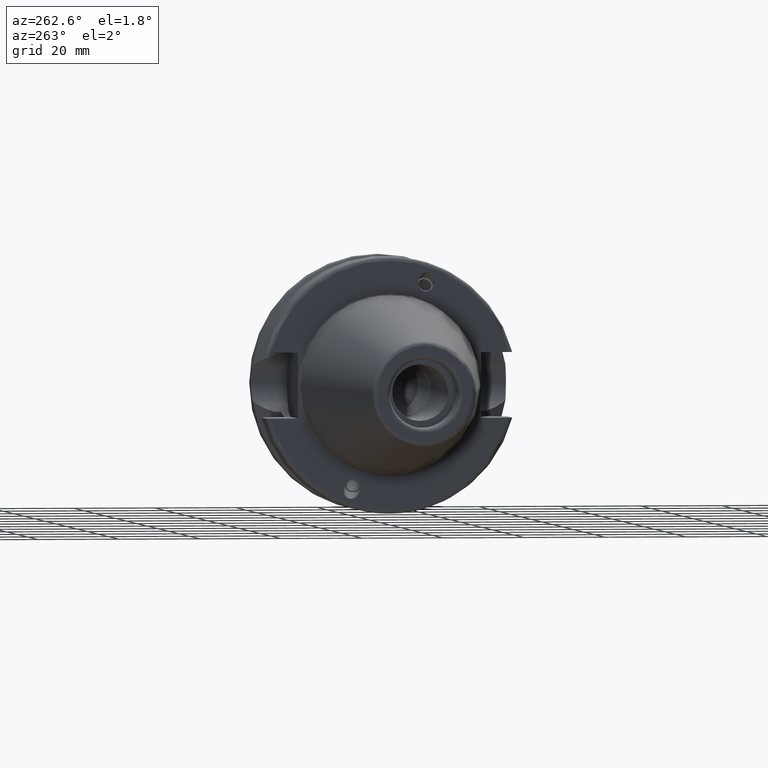
[diagram: clean part render]
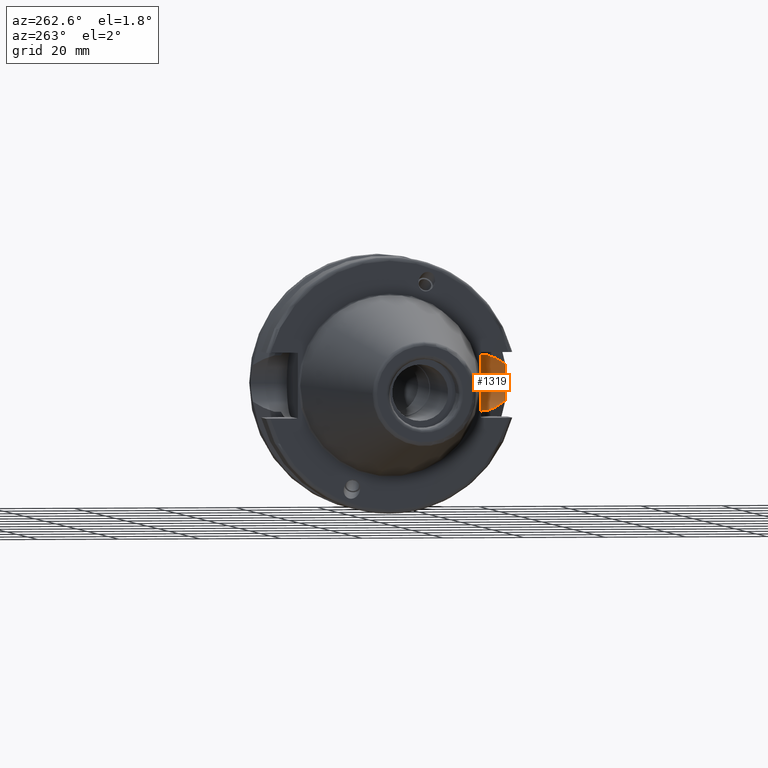
[diagram: same view with one face highlighted and labeled with its STEP entity id]
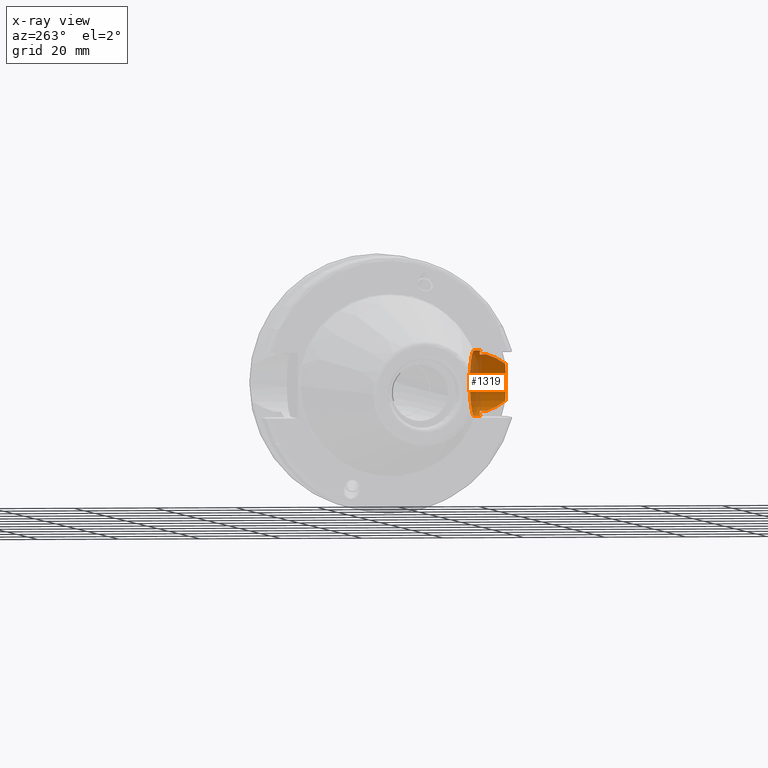
[diagram: x-ray of the same camera — body ghosted, the highlighted face saturated]
A machine part, auxiliary view. The second image highlights one B-rep face of the part: STEP entity #1319.
The next image is the same camera in x-ray: the body ghosted, the highlighted face saturated — about 30% of this face is hidden behind the body in this view.
In plain terms, the highlighted cylindrical surface (edge-blend (fillet) strip) has radius 8.05 mm, axis along (0, 1, 0).
Its self-contained STEP definition (entity closure, byte-faithful):
#45=B_SPLINE_CURVE_WITH_KNOTS('',3,(#2347,#2348,#2349,#2350,#2351,#2352),
 .UNSPECIFIED.,.F.,.F.,(4,2,4),(2.02525951614585,2.13846497015446,2.44402436414645),
 .UNSPECIFIED.);
#46=B_SPLINE_CURVE_WITH_KNOTS('',3,(#2356,#2357,#2358,#2359,#2360,#2361),
 .UNSPECIFIED.,.F.,.F.,(4,2,4),(3.12975744792547,3.62699288756974,3.70848737461386),
 .UNSPECIFIED.);
#47=B_SPLINE_CURVE_WITH_KNOTS('',3,(#2363,#2364,#2365,#2366,#2367,#2368),
 .UNSPECIFIED.,.F.,.F.,(4,2,4),(1.21877751840372,1.52344857393281,1.67526011710938),
 .UNSPECIFIED.);
#48=B_SPLINE_CURVE_WITH_KNOTS('',3,(#2370,#2371,#2372,#2373,#2374,#2375),
 .UNSPECIFIED.,.F.,.F.,(4,2,4),(0.762294919698051,0.914106462874623,1.21877751840372),
 .UNSPECIFIED.);
#49=B_SPLINE_CURVE_WITH_KNOTS('',3,(#2377,#2378,#2379,#2380,#2381,#2382),
 .UNSPECIFIED.,.F.,.F.,(4,2,4),(1.46421027899559,1.54570476603972,2.04294020568399),
 .UNSPECIFIED.);
#50=B_SPLINE_CURVE_WITH_KNOTS('',3,(#2386,#2387,#2388,#2389,#2390,#2391),
 .UNSPECIFIED.,.F.,.F.,(4,2,4),(0.,0.305559393991992,0.418764848000603),
 .UNSPECIFIED.);
#78=CYLINDRICAL_SURFACE('',#1477,8.05);
#149=LINE('',#2354,#209);
#150=LINE('',#2384,#210);
#151=LINE('',#2393,#211);
#152=LINE('',#2396,#212);
#209=VECTOR('',#1794,10.);
#210=VECTOR('',#1795,10.);
#211=VECTOR('',#1796,10.);
#212=VECTOR('',#1799,10.);
#291=FACE_OUTER_BOUND('',#370,.T.);
#370=EDGE_LOOP('',(#1057,#1058,#1059,#1060,#1061,#1062,#1063,#1064,#1065,
#1066,#1067));
#464=CIRCLE('',#1478,8.05);
#587=VERTEX_POINT('',#2345);
#588=VERTEX_POINT('',#2346);
#589=VERTEX_POINT('',#2353);
#590=VERTEX_POINT('',#2355);
#591=VERTEX_POINT('',#2362);
#592=VERTEX_POINT('',#2369);
#593=VERTEX_POINT('',#2376);
#594=VERTEX_POINT('',#2383);
#595=VERTEX_POINT('',#2385);
#596=VERTEX_POINT('',#2392);
#597=VERTEX_POINT('',#2394);
#760=EDGE_CURVE('',#587,#588,#45,.T.);
#761=EDGE_CURVE('',#589,#587,#149,.T.);
#762=EDGE_CURVE('',#590,#589,#46,.T.);
#763=EDGE_CURVE('',#591,#590,#47,.T.);
#764=EDGE_CURVE('',#592,#591,#48,.T.);
#765=EDGE_CURVE('',#593,#592,#49,.T.);
#766=EDGE_CURVE('',#594,#593,#150,.T.);
#767=EDGE_CURVE('',#595,#594,#50,.T.);
#768=EDGE_CURVE('',#596,#595,#151,.T.);
#769=EDGE_CURVE('',#596,#597,#464,.T.);
#770=EDGE_CURVE('',#597,#588,#152,.T.);
#1057=ORIENTED_EDGE('',*,*,#760,.F.);
#1058=ORIENTED_EDGE('',*,*,#761,.F.);
#1059=ORIENTED_EDGE('',*,*,#762,.F.);
#1060=ORIENTED_EDGE('',*,*,#763,.F.);
#1061=ORIENTED_EDGE('',*,*,#764,.F.);
#1062=ORIENTED_EDGE('',*,*,#765,.F.);
#1063=ORIENTED_EDGE('',*,*,#766,.F.);
#1064=ORIENTED_EDGE('',*,*,#767,.F.);
#1065=ORIENTED_EDGE('',*,*,#768,.F.);
#1066=ORIENTED_EDGE('',*,*,#769,.T.);
#1067=ORIENTED_EDGE('',*,*,#770,.T.);
#1319=ADVANCED_FACE('',(#291),#78,.F.);
#1477=AXIS2_PLACEMENT_3D('',#2344,#1792,#1793);
#1478=AXIS2_PLACEMENT_3D('',#2395,#1797,#1798);
#1792=DIRECTION('center_axis',(0.,1.,0.));
#1793=DIRECTION('ref_axis',(0.,0.,1.));
#1794=DIRECTION('',(0.,1.,0.));
#1795=DIRECTION('',(0.,-1.,0.));
#1796=DIRECTION('',(0.,-1.,0.));
#1797=DIRECTION('center_axis',(0.,1.,0.));
#1798=DIRECTION('ref_axis',(0.,0.,1.));
#1799=DIRECTION('',(0.,-1.,0.));
#2344=CARTESIAN_POINT('Origin',(14.95,-22.6,0.));
#2345=CARTESIAN_POINT('',(19.1,-24.5493380766162,-6.89782574439221));
#2346=CARTESIAN_POINT('',(14.95,-24.1960224003864,-8.05));
#2347=CARTESIAN_POINT('Ctrl Pts',(19.1,-24.5493380766162,-6.89782574439221));
#2348=CARTESIAN_POINT('Ctrl Pts',(18.7625417379862,-24.492291659194,-7.10085374759973));
#2349=CARTESIAN_POINT('Ctrl Pts',(18.4072379028184,-24.4390565244262,-7.28065599998141));
#2350=CARTESIAN_POINT('Ctrl Pts',(17.0497516664971,-24.2670783971366,-7.84501312719341));
#2351=CARTESIAN_POINT('Ctrl Pts',(15.9685313133066,-24.1960224003864,-8.05));
#2352=CARTESIAN_POINT('Ctrl Pts',(14.95,-24.1960224003864,-8.05));
#2353=CARTESIAN_POINT('',(19.1,-26.201311395455,-6.89782574439221));
#2354=CARTESIAN_POINT('',(19.1,-22.6,-6.89782574439221));
#2355=CARTESIAN_POINT('',(21.6309636926618,-31.1782420264945,-4.4907932637046));
#2356=CARTESIAN_POINT('Ctrl Pts',(21.6309636926618,-31.1782420264945,-4.4907932637046));
#2357=CARTESIAN_POINT('Ctrl Pts',(20.9728756148303,-29.8797957262939,-5.46983244373115));
#2358=CARTESIAN_POINT('Ctrl Pts',(20.1784155384866,-28.3157123387484,-6.18231368976925));
#2359=CARTESIAN_POINT('Ctrl Pts',(19.3406963650697,-26.6728819297428,-6.74867108656039));
#2360=CARTESIAN_POINT('Ctrl Pts',(19.2210929544554,-26.4384736933511,-6.82497151762395));
#2361=CARTESIAN_POINT('Ctrl Pts',(19.1,-26.201311395455,-6.89782574439221));
#2362=CARTESIAN_POINT('',(23.,-31.5,-1.51248507442265E-15));
#2363=CARTESIAN_POINT('Ctrl Pts',(23.,-31.5,8.32667268468867E-16));
#2364=CARTESIAN_POINT('Ctrl Pts',(23.,-31.5,-1.01557018509698));
#2365=CARTESIAN_POINT('Ctrl Pts',(22.7961189876535,-31.445974204441,-2.09580170425552));
#2366=CARTESIAN_POINT('Ctrl Pts',(22.1796133812044,-31.2997625705024,-3.58065358198869));
#2367=CARTESIAN_POINT('Ctrl Pts',(21.92482980253,-31.2412125047166,-4.05360796141051));
#2368=CARTESIAN_POINT('Ctrl Pts',(21.6309636926618,-31.1782420264945,-4.4907932637046));
#2369=CARTESIAN_POINT('',(21.6309636926618,-31.1782420264945,4.4907932637046));
#2370=CARTESIAN_POINT('Ctrl Pts',(21.6309636926618,-31.1782420264945,4.4907932637046));
#2371=CARTESIAN_POINT('Ctrl Pts',(21.92482980253,-31.2412125047166,4.05360796141051));
#2372=CARTESIAN_POINT('Ctrl Pts',(22.1796133812044,-31.2997625705024,3.58065358198869));
#2373=CARTESIAN_POINT('Ctrl Pts',(22.7961189876535,-31.445974204441,2.09580170425552));
#2374=CARTESIAN_POINT('Ctrl Pts',(23.,-31.5,1.01557018509698));
#2375=CARTESIAN_POINT('Ctrl Pts',(23.,-31.5,-2.77555756156289E-16));
#2376=CARTESIAN_POINT('',(19.1,-26.201311395455,6.89782574439221));
#2377=CARTESIAN_POINT('Ctrl Pts',(19.1,-26.201311395455,6.89782574439221));
#2378=CARTESIAN_POINT('Ctrl Pts',(19.2210929544554,-26.4384736933511,6.82497151762395));
#2379=CARTESIAN_POINT('Ctrl Pts',(19.3406963650697,-26.6728819297428,6.74867108656039));
#2380=CARTESIAN_POINT('Ctrl Pts',(20.1784155384866,-28.3157123387484,6.18231368976925));
#2381=CARTESIAN_POINT('Ctrl Pts',(20.9728756148303,-29.8797957262939,5.46983244373115));
#2382=CARTESIAN_POINT('Ctrl Pts',(21.6309636926618,-31.1782420264945,4.4907932637046));
#2383=CARTESIAN_POINT('',(19.1,-24.5493380766162,6.89782574439221));
#2384=CARTESIAN_POINT('',(19.1,-22.6,6.89782574439221));
#2385=CARTESIAN_POINT('',(14.95,-24.1960224003864,8.05));
#2386=CARTESIAN_POINT('Ctrl Pts',(14.95,-24.1960224003864,8.05));
#2387=CARTESIAN_POINT('Ctrl Pts',(15.9685313133066,-24.1960224003864,8.05));
#2388=CARTESIAN_POINT('Ctrl Pts',(17.0497516664971,-24.2670783971366,7.84501312719341));
#2389=CARTESIAN_POINT('Ctrl Pts',(18.4072379028184,-24.4390565244262,7.28065599998141));
#2390=CARTESIAN_POINT('Ctrl Pts',(18.7625417379862,-24.492291659194,7.10085374759973));
#2391=CARTESIAN_POINT('Ctrl Pts',(19.1,-24.5493380766162,6.89782574439221));
#2392=CARTESIAN_POINT('',(14.95,-22.6,8.05));
#2393=CARTESIAN_POINT('',(14.95,-22.6,8.05));
#2394=CARTESIAN_POINT('',(14.95,-22.6,-8.05));
#2395=CARTESIAN_POINT('Origin',(14.95,-22.6,0.));
#2396=CARTESIAN_POINT('',(14.95,-22.6,-8.05));